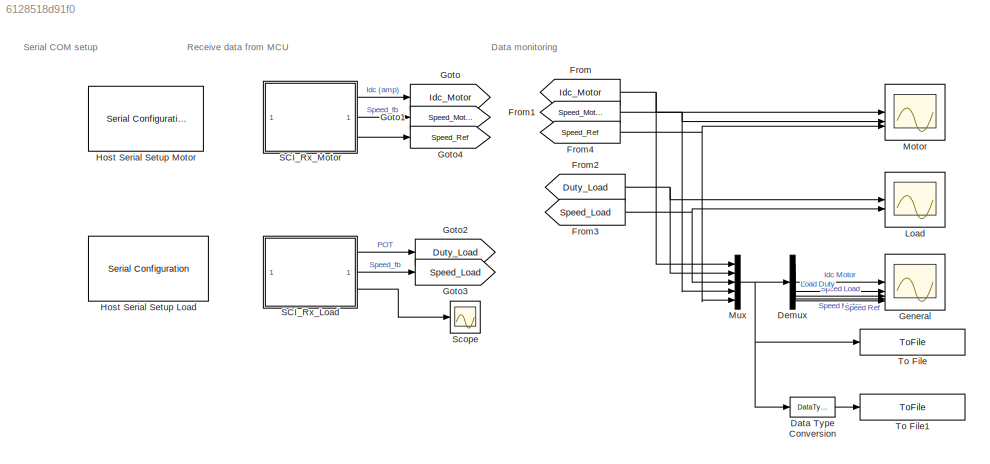
MODEL slx_6128518d91f0
KIND model
CONFIG AbsTol = auto
CONFIG EnableMultiTasking = on
CONFIG FixedStep = auto
CONFIG InitFcn = mcb_bldc_sixstep_f28069mLaunchPad_data;\n
CONFIG MaxStep = auto
CONFIG MinStep = auto
CONFIG RelTol = 1e-3
CONFIG SampleTimeConstraint = Unconstrained
CONFIG SolverName = FixedStepDiscrete
CONFIG StartTime = 0.0
CONFIG StopFcn = dataMonitoringArr;
CONFIG StopTime = inf
BLOCK [DataTypeConversion] Data Type Conversion
  RndMeth = Floor
  SaturateOnIntegerOverflow = off
BLOCK [Demux] Demux
  Outputs = 5
BLOCK [From] From
  GotoTag = Idc_Motor
BLOCK [From] From1
  GotoTag = Speed_Motor
BLOCK [From] From2
  GotoTag = Duty_Load
BLOCK [From] From3
  GotoTag = Speed_Load
BLOCK [From] From4
  GotoTag = Speed_Ref
BLOCK [Scope] General
  Floating = off
  NumInputPorts = 5
  ScopeSpecificationString = Simulink.scopes.TimeScopeBlockCfg('CurrentConfiguration', extmgr.ConfigurationSet(extmgr.Configuration('Core','General UI',true,'FigureColor',[1 1 1]),extmgr.Configuration('Core','Source UI',true),extmgr.Configuration('Sources','WiredSimulink',true,'DataLoggingVariableName','ScopeData2'),extmgr.Configuration('Visuals','Time Domain',true,'InputProcessing','FrameProcessing','SerializedDisplays',{str...<+4311ch>
BLOCK [Goto] Goto
  GotoTag = Idc_Motor
BLOCK [Goto] Goto1
  GotoTag = Speed_Motor
BLOCK [Goto] Goto2
  GotoTag = Duty_Load
BLOCK [Goto] Goto3
  GotoTag = Speed_Load
BLOCK [Goto] Goto4
  GotoTag = Speed_Ref
BLOCK [Reference] Host Serial Setup Load  REF=instrumentseriallib/Serial Configuration
  Priority = -99
  SourceBlock = instrumentseriallib/Serial Configuration
  SourceType = system.SerialConfiguration
BLOCK [Reference] Host Serial Setup Motor  REF=instrumentseriallib/Serial Configuration
  Priority = -99
  SourceBlock = instrumentseriallib/Serial Configuration
  SourceType = system.SerialConfiguration
BLOCK [Scope] Load
  Floating = off
  NumInputPorts = 2
  ScopeSpecificationString = Simulink.scopes.TimeScopeBlockCfg('CurrentConfiguration', extmgr.ConfigurationSet(extmgr.Configuration('Core','General UI',true,'FigureColor',[1 1 1]),extmgr.Configuration('Core','Source UI',true),extmgr.Configuration('Sources','WiredSimulink',true,'DataLoggingVariableName','ScopeData1'),extmgr.Configuration('Visuals','Time Domain',true,'InputProcessing','FrameProcessing','SerializedDisplays',{str...<+2582ch>
BLOCK [Scope] Motor
  Floating = off
  NumInputPorts = 3
  ScopeSpecificationString = Simulink.scopes.TimeScopeBlockCfg('CurrentConfiguration', extmgr.ConfigurationSet(extmgr.Configuration('Core','General UI',true,'FigureColor',[1 1 1]),extmgr.Configuration('Core','Source UI',true),extmgr.Configuration('Sources','WiredSimulink',true),extmgr.Configuration('Visuals','Time Domain',true,'InputProcessing','FrameProcessing','SerializedDisplays',{struct('MinYLimReal','-0.04578','MaxYLimRe...<+2568ch>
BLOCK [Mux] Mux
  DisplayOption = bar
  Inputs = 5
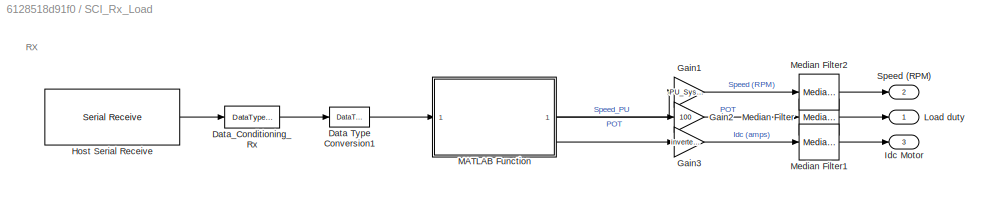
BLOCK [SubSystem] SCI_Rx_Load
BLOCK [DataTypeConversion] SCI_Rx_Load/Data Type Conversion1
  OutDataTypeStr = single
  RndMeth = Simplest
  SaturateOnIntegerOverflow = off
BLOCK [DataTypeConversion] SCI_Rx_Load/Data_Conditioning_Rx
  ConvertRealWorld = Stored Integer (SI)
  OutDataTypeStr = fixdt(1,16,12)
  RndMeth = Simplest
  SaturateOnIntegerOverflow = off
BLOCK [Gain] SCI_Rx_Load/Gain1
  Gain = -PU_System.N_base
  OutDataTypeStr = single
  RndMeth = Simplest
BLOCK [Gain] SCI_Rx_Load/Gain2
  Gain = 100
  OutDataTypeStr = single
  RndMeth = Simplest
BLOCK [Gain] SCI_Rx_Load/Gain3
  Gain = inverter.ISenseMax
  OutDataTypeStr = single
  RndMeth = Simplest
BLOCK [Reference] SCI_Rx_Load/Host Serial Receive  REF=instrumentseriallib/Serial Receive
  SourceBlock = instrumentseriallib/Serial Receive
  SourceType = system.SerialReceive
BLOCK [Outport] SCI_Rx_Load/Idc Motor
  Port = 3
BLOCK [Outport] SCI_Rx_Load/Load duty
  NameLocation = right
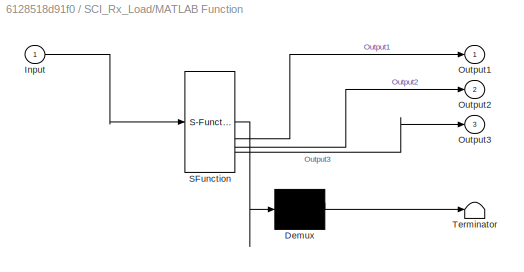
BLOCK [SubSystem] SCI_Rx_Load/MATLAB Function
  ErrorFcn = Stateflow.Translate.translate
  PermitHierarchicalResolution = ExplicitOnly
  SFBlockType = MATLAB Function
  TreatAsAtomicUnit = on
BLOCK [Demux] SCI_Rx_Load/MATLAB Function/ Demux 
  Outputs = 1
BLOCK [S-Function] SCI_Rx_Load/MATLAB Function/ SFunction 
  EnableBusSupport = on
  FunctionName = sf_sfun
  PortCounts = [1 4]
  SFcnIsStateOwnerBlock = off
  SFunctionDeploymentMode = off
  Tag = Stateflow S-Function 1
BLOCK [Terminator] SCI_Rx_Load/MATLAB Function/ Terminator 
BLOCK [Inport] SCI_Rx_Load/MATLAB Function/Input
BLOCK [Outport] SCI_Rx_Load/MATLAB Function/Output1
BLOCK [Outport] SCI_Rx_Load/MATLAB Function/Output2
  Port = 2
BLOCK [Outport] SCI_Rx_Load/MATLAB Function/Output3
  Port = 3
BLOCK [Reference] SCI_Rx_Load/Median Filter  REF=dspstat3/Median
Filter
  LibrarySourceBlock = dspfdesign/Median\nFilter
  SourceBlock = dspstat3/Median\nFilter
  SourceType = dsp.simulink.MedianFilter
BLOCK [Reference] SCI_Rx_Load/Median Filter1  REF=dspstat3/Median
Filter
  LibrarySourceBlock = dspfdesign/Median\nFilter
  SourceBlock = dspstat3/Median\nFilter
  SourceType = dsp.simulink.MedianFilter
BLOCK [Reference] SCI_Rx_Load/Median Filter2  REF=dspstat3/Median
Filter
  LibrarySourceBlock = dspfdesign/Median\nFilter
  SourceBlock = dspstat3/Median\nFilter
  SourceType = dsp.simulink.MedianFilter
BLOCK [Outport] SCI_Rx_Load/Speed (RPM)
  NameLocation = right
  Port = 2
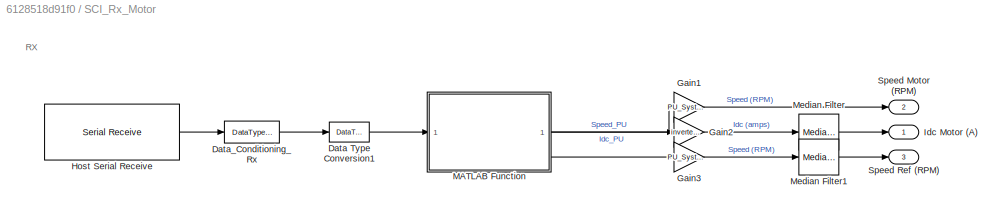
BLOCK [SubSystem] SCI_Rx_Motor
BLOCK [DataTypeConversion] SCI_Rx_Motor/Data Type Conversion1
  OutDataTypeStr = single
  RndMeth = Simplest
  SaturateOnIntegerOverflow = off
BLOCK [DataTypeConversion] SCI_Rx_Motor/Data_Conditioning_Rx
  ConvertRealWorld = Stored Integer (SI)
  OutDataTypeStr = fixdt(1,16,12)
  RndMeth = Simplest
  SaturateOnIntegerOverflow = off
BLOCK [Gain] SCI_Rx_Motor/Gain1
  Gain = PU_System.N_base
  OutDataTypeStr = single
  RndMeth = Simplest
BLOCK [Gain] SCI_Rx_Motor/Gain2
  Gain = inverter.ISenseMax
  OutDataTypeStr = single
  RndMeth = Simplest
BLOCK [Gain] SCI_Rx_Motor/Gain3
  Gain = PU_System.N_base
  OutDataTypeStr = single
  RndMeth = Simplest
BLOCK [Reference] SCI_Rx_Motor/Host Serial Receive  REF=instrumentseriallib/Serial Receive
  SourceBlock = instrumentseriallib/Serial Receive
  SourceType = system.SerialReceive
BLOCK [Outport] SCI_Rx_Motor/Idc Motor (A)
  NameLocation = right
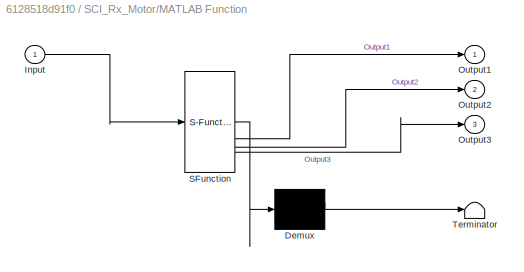
BLOCK [SubSystem] SCI_Rx_Motor/MATLAB Function
  ErrorFcn = Stateflow.Translate.translate
  PermitHierarchicalResolution = ExplicitOnly
  SFBlockType = MATLAB Function
  TreatAsAtomicUnit = on
BLOCK [Demux] SCI_Rx_Motor/MATLAB Function/ Demux 
  Outputs = 1
BLOCK [S-Function] SCI_Rx_Motor/MATLAB Function/ SFunction 
  EnableBusSupport = on
  FunctionName = sf_sfun
  PortCounts = [1 4]
  SFcnIsStateOwnerBlock = off
  SFunctionDeploymentMode = off
  Tag = Stateflow S-Function 3
BLOCK [Terminator] SCI_Rx_Motor/MATLAB Function/ Terminator 
BLOCK [Inport] SCI_Rx_Motor/MATLAB Function/Input
BLOCK [Outport] SCI_Rx_Motor/MATLAB Function/Output1
BLOCK [Outport] SCI_Rx_Motor/MATLAB Function/Output2
  Port = 2
BLOCK [Outport] SCI_Rx_Motor/MATLAB Function/Output3
  Port = 3
BLOCK [Reference] SCI_Rx_Motor/Median Filter  REF=dspstat3/Median
Filter
  LibrarySourceBlock = dspfdesign/Median\nFilter
  SourceBlock = dspstat3/Median\nFilter
  SourceType = dsp.simulink.MedianFilter
BLOCK [Reference] SCI_Rx_Motor/Median Filter1  REF=dspstat3/Median
Filter
  LibrarySourceBlock = dspfdesign/Median\nFilter
  SourceBlock = dspstat3/Median\nFilter
  SourceType = dsp.simulink.MedianFilter
BLOCK [Outport] SCI_Rx_Motor/Speed Motor (RPM)
  NameLocation = right
  Port = 2
BLOCK [Outport] SCI_Rx_Motor/Speed Ref (RPM)
  NameLocation = right
  Port = 3
BLOCK [Scope] Scope
  Floating = off
  NumInputPorts = 1
  ScopeSpecificationString = Simulink.scopes.TimeScopeBlockCfg('CurrentConfiguration', extmgr.ConfigurationSet(extmgr.Configuration('Core','General UI',true),extmgr.Configuration('Core','Source UI',true),extmgr.Configuration('Sources','WiredSimulink',true,'DataLoggingVariableName','ScopeData1'),extmgr.Configuration('Visuals','Time Domain',true,'InputProcessing','FrameProcessing','SerializedDisplays',{struct('MinYLimReal','-0....<+1448ch>
BLOCK [ToFile] To File
  Filename = ModelMonitoring.mat
  MatrixName = IdcMtr_PotLd_SpMtr_SpLd
  SaveFormat = Timeseries
BLOCK [ToFile] To File1
  Filename = arrModelMonitoring.mat
  MatrixName = IdcMtr_PotLd_SpMtr_SpLd
ANNOTATION (root): Data monitoring
ANNOTATION (root): Receive data from MCU
ANNOTATION (root): Serial COM setup
ANNOTATION SCI_Rx_Load: RX
ANNOTATION SCI_Rx_Motor: RX
LINE Data Type Conversion:1 -> To File1:1
LINE Demux:1 -> General:1
LINE Demux:2 -> General:2
LINE Demux:3 -> General:3
LINE Demux:4 -> General:4
LINE Demux:5 -> General:5
NET From1:1 -> Motor:2, Mux:4
NET From2:1 -> Load:1, Mux:2
NET From3:1 -> Load:2, Mux:3
NET From4:1 -> Motor:3, Mux:5
NET From:1 -> Motor:1, Mux:1
NET Mux:1 -> Data Type Conversion:1, Demux:1, To File:1
LINE SCI_Rx_Load/Data Type Conversion1:1 -> SCI_Rx_Load/MATLAB Function:1
LINE SCI_Rx_Load/Data_Conditioning_Rx:1 -> SCI_Rx_Load/Data Type Conversion1:1
LINE SCI_Rx_Load/Gain1:1 -> SCI_Rx_Load/Median Filter2:1
LINE SCI_Rx_Load/Gain2:1 -> SCI_Rx_Load/Median Filter:1
LINE SCI_Rx_Load/Gain3:1 -> SCI_Rx_Load/Median Filter1:1
LINE SCI_Rx_Load/Host Serial Receive:1 -> SCI_Rx_Load/Data_Conditioning_Rx:1
LINE SCI_Rx_Load/MATLAB Function:1 -> SCI_Rx_Load/Gain1:1
LINE SCI_Rx_Load/MATLAB Function:2 -> SCI_Rx_Load/Gain2:1
LINE SCI_Rx_Load/MATLAB Function:3 -> SCI_Rx_Load/Gain3:1
LINE SCI_Rx_Load/Median Filter1:1 -> SCI_Rx_Load/Idc Motor:1
LINE SCI_Rx_Load/Median Filter2:1 -> SCI_Rx_Load/Speed (RPM):1
LINE SCI_Rx_Load/Median Filter:1 -> SCI_Rx_Load/Load duty:1
LINE SCI_Rx_Load:1 -> Goto2:1
LINE SCI_Rx_Load:2 -> Goto3:1
LINE SCI_Rx_Load:3 -> Scope:1
LINE SCI_Rx_Motor/Data Type Conversion1:1 -> SCI_Rx_Motor/MATLAB Function:1
LINE SCI_Rx_Motor/Data_Conditioning_Rx:1 -> SCI_Rx_Motor/Data Type Conversion1:1
LINE SCI_Rx_Motor/Gain1:1 -> SCI_Rx_Motor/Speed Motor (RPM):1
LINE SCI_Rx_Motor/Gain2:1 -> SCI_Rx_Motor/Median Filter:1
LINE SCI_Rx_Motor/Gain3:1 -> SCI_Rx_Motor/Median Filter1:1
LINE SCI_Rx_Motor/Host Serial Receive:1 -> SCI_Rx_Motor/Data_Conditioning_Rx:1
LINE SCI_Rx_Motor/MATLAB Function:1 -> SCI_Rx_Motor/Gain1:1
LINE SCI_Rx_Motor/MATLAB Function:2 -> SCI_Rx_Motor/Gain2:1
LINE SCI_Rx_Motor/MATLAB Function:3 -> SCI_Rx_Motor/Gain3:1
LINE SCI_Rx_Motor/Median Filter1:1 -> SCI_Rx_Motor/Speed Ref (RPM):1
LINE SCI_Rx_Motor/Median Filter:1 -> SCI_Rx_Motor/Idc Motor (A):1
LINE SCI_Rx_Motor:1 -> Goto:1
LINE SCI_Rx_Motor:2 -> Goto1:1
LINE SCI_Rx_Motor:3 -> Goto4:1
note: NET lines group one-source signal fan-out (src -> all destinations, sorted); 1:1 wires keep LINE
CHART SCI_Rx_Load/MATLAB Function states=1 transitions=1
  STATE_LABEL 'eML_blk_kernel()'
  STATE_LABEL 'SCRIPT:\nfunction [ Output1, Output2, Output3] = unBuf(Input)\n\nOutput1 = Input(:, 1);\nOutput2 = Input(:, 2);\nOutput3 = Input(:, 3);\n% Output4 = Input(:, 4);\nend'
CHART SCI_Rx_Motor/MATLAB Function states=1 transitions=1
  STATE_LABEL 'eML_blk_kernel()'
  STATE_LABEL 'SCRIPT:\nfunction [ Output1, Output2, Output3] = unBuf(Input)\n\nOutput1 = Input(:, 1);\nOutput2 = Input(:, 2);\nOutput3 = Input(:, 3);\n% Output4 = Input(:, 4);\nend'
CHART  states=0 transitions=0
CHART  states=0 transitions=0
